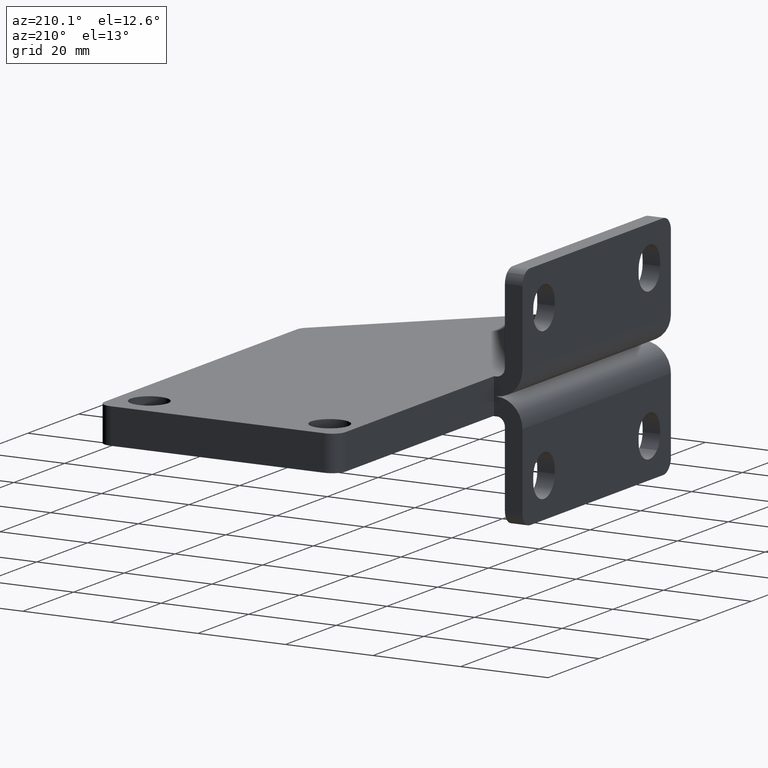
[diagram: clean part render]
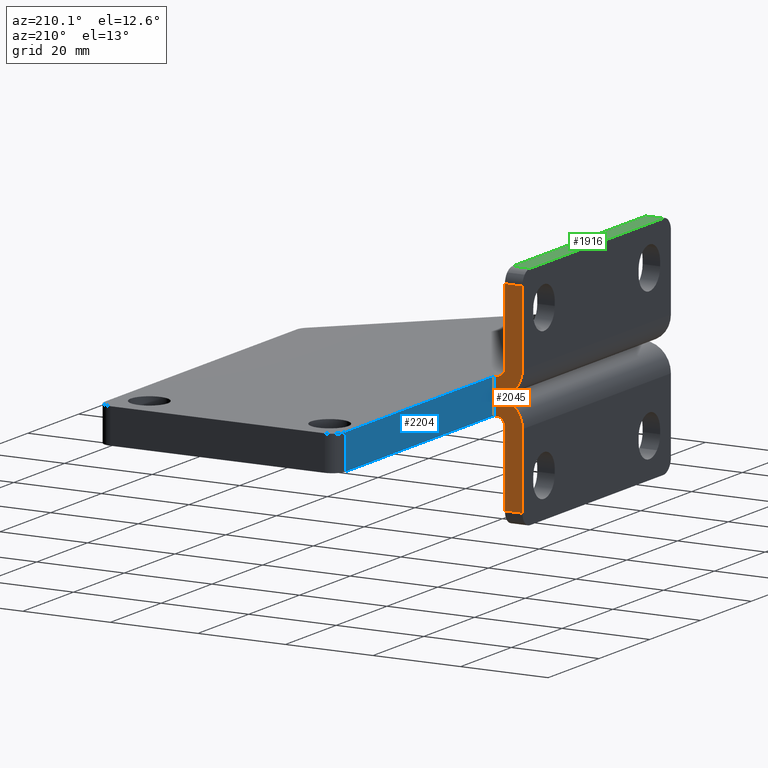
[diagram: same view with three faces highlighted in distinct colors, each labeled with its STEP entity id]
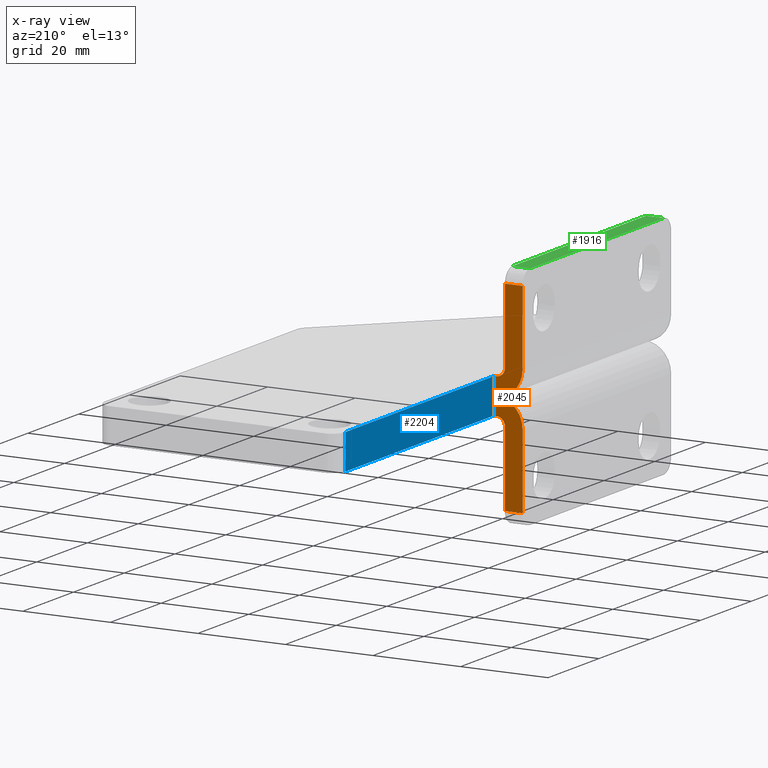
[diagram: x-ray of the same camera — body ghosted, the three highlighted faces saturated]
A machine part, auxiliary view with three faces highlighted in distinct colors.
The next image is the same camera in x-ray (body ghosted, the three faces saturated) — at least one of them is partly hidden behind the body in this view.
Their STEP definitions:

[orange] entity #2045 — the highlighted planar face has unit normal (0, 1, 0).
#59=CARTESIAN_POINT('',(-48.502768757920634,53.695288139689026,23.0));
#60=VERTEX_POINT('',#59);
#68=CARTESIAN_POINT('',(-52.502768757920641,53.695288139689026,23.0));
#69=VERTEX_POINT('',#68);
#70=CARTESIAN_POINT('',(-48.502768757920634,53.695288139689026,23.0));
#71=DIRECTION('',(-1.0,0.0,0.0));
#72=VECTOR('',#71,4.000000000000007);
#73=LINE('',#70,#72);
#74=EDGE_CURVE('',#60,#69,#73,.T.);
#1189=CARTESIAN_POINT('',(-48.502768757920627,53.695288139689019,-22.999999999999993));
#1190=VERTEX_POINT('',#1189);
#1198=CARTESIAN_POINT('',(-48.502768757920627,53.695288139689019,-5.999999999999995));
#1199=VERTEX_POINT('',#1198);
#1200=CARTESIAN_POINT('',(-48.502768757920627,53.695288139689019,-5.999999999999995));
#1201=DIRECTION('',(0.0,0.0,-1.0));
#1202=VECTOR('',#1201,17.0);
#1203=LINE('',#1200,#1202);
#1204=EDGE_CURVE('',#1199,#1190,#1203,.T.);
#1266=CARTESIAN_POINT('',(-52.502768757920620,53.695288139689019,-22.999999999999993));
#1267=VERTEX_POINT('',#1266);
#1275=CARTESIAN_POINT('',(-48.502768757920627,53.695288139689019,-22.999999999999993));
#1276=DIRECTION('',(-1.0,0.0,0.0));
#1277=VECTOR('',#1276,3.999999999999993);
#1278=LINE('',#1275,#1277);
#1279=EDGE_CURVE('',#1190,#1267,#1278,.T.);
#1312=CARTESIAN_POINT('',(-46.502768757920627,53.695288139689019,-3.999999999999996));
#1313=VERTEX_POINT('',#1312);
#1314=CARTESIAN_POINT('',(-46.502768757920634,53.695288139689019,-5.999999999999996));
#1315=DIRECTION('',(0.0,-1.0,0.0));
#1316=DIRECTION('',(0.0,0.0,1.0));
#1317=AXIS2_PLACEMENT_3D('',#1314,#1315,#1316);
#1318=CIRCLE('',#1317,2.000000000000001);
#1319=EDGE_CURVE('',#1313,#1199,#1318,.T.);
#1365=CARTESIAN_POINT('',(-52.502768757920634,53.695288139689019,-5.999999999999995));
#1366=VERTEX_POINT('',#1365);
#1384=CARTESIAN_POINT('',(-46.502768757920634,53.695288139689026,0.0));
#1385=VERTEX_POINT('',#1384);
#1392=CARTESIAN_POINT('',(-46.502768757920634,53.695288139689019,-5.999999999999996));
#1393=DIRECTION('',(0.0,-1.0,0.0));
#1394=DIRECTION('',(0.0,0.0,1.0));
#1395=AXIS2_PLACEMENT_3D('',#1392,#1393,#1394);
#1396=CIRCLE('',#1395,6.000000000000001);
#1397=EDGE_CURVE('',#1385,#1366,#1396,.T.);
#1408=CARTESIAN_POINT('',(-46.002768757920627,53.695288139689019,-3.999999999999996));
#1409=VERTEX_POINT('',#1408);
#1410=CARTESIAN_POINT('',(-46.002768757920627,53.695288139689019,-3.999999999999996));
#1411=DIRECTION('',(-1.0,0.0,0.0));
#1412=VECTOR('',#1411,0.500000000000000);
#1413=LINE('',#1410,#1412);
#1414=EDGE_CURVE('',#1409,#1313,#1413,.T.);
#1527=CARTESIAN_POINT('',(-52.502768757920634,53.695288139689019,-5.999999999999995));
#1528=DIRECTION('',(0.0,0.0,-1.0));
#1529=VECTOR('',#1528,17.0);
#1530=LINE('',#1527,#1529);
#1531=EDGE_CURVE('',#1366,#1267,#1530,.T.);
#1931=CARTESIAN_POINT('',(-48.502768757920634,53.695288139689026,6.0));
#1932=VERTEX_POINT('',#1931);
#1939=CARTESIAN_POINT('',(-48.502768757920634,53.695288139689026,6.0));
#1940=DIRECTION('',(0.0,0.0,1.0));
#1941=VECTOR('',#1940,17.0);
#1942=LINE('',#1939,#1941);
#1943=EDGE_CURVE('',#1932,#60,#1942,.T.);
#1992=CARTESIAN_POINT('',(-48.502768757920634,53.695288139689026,4.0));
#1993=DIRECTION('',(0.0,1.0,0.0));
#1994=DIRECTION('',(0.0,0.0,1.0));
#1995=AXIS2_PLACEMENT_3D('',#1992,#1993,#1994);
#1996=PLANE('',#1995);
#1997=ORIENTED_EDGE('',*,*,#74,.F.);
#1998=ORIENTED_EDGE('',*,*,#1943,.F.);
#1999=CARTESIAN_POINT('',(-46.502768757920634,53.695288139689026,4.0));
#2000=VERTEX_POINT('',#1999);
#2001=CARTESIAN_POINT('',(-46.502768757920649,53.695288139689026,6.000000000000001));
#2002=DIRECTION('',(0.0,1.0,0.0));
#2003=DIRECTION('',(0.0,0.0,-1.0));
#2004=AXIS2_PLACEMENT_3D('',#2001,#2002,#2003);
#2005=CIRCLE('',#2004,2.000000000000001);
#2006=EDGE_CURVE('',#2000,#1932,#2005,.T.);
#2007=ORIENTED_EDGE('',*,*,#2006,.F.);
#2008=CARTESIAN_POINT('',(-46.002768757920634,53.695288139689026,4.0));
#2009=VERTEX_POINT('',#2008);
#2010=CARTESIAN_POINT('',(-46.002768757920634,53.695288139689026,4.0));
#2011=DIRECTION('',(-1.0,0.0,0.0));
#2012=VECTOR('',#2011,0.500000000000000);
#2013=LINE('',#2010,#2012);
#2014=EDGE_CURVE('',#2009,#2000,#2013,.T.);
#2015=ORIENTED_EDGE('',*,*,#2014,.F.);
#2016=CARTESIAN_POINT('',(-46.002768757920627,53.695288139689019,-3.999999999999996));
#2017=DIRECTION('',(0.0,0.0,1.0));
#2018=VECTOR('',#2017,7.999999999999996);
#2019=LINE('',#2016,#2018);
#2020=EDGE_CURVE('',#1409,#2009,#2019,.T.);
#2021=ORIENTED_EDGE('',*,*,#2020,.F.);
#2022=ORIENTED_EDGE('',*,*,#1414,.T.);
#2023=ORIENTED_EDGE('',*,*,#1319,.T.);
#2024=ORIENTED_EDGE('',*,*,#1204,.T.);
#2025=ORIENTED_EDGE('',*,*,#1279,.T.);
#2026=ORIENTED_EDGE('',*,*,#1531,.F.);
#2027=ORIENTED_EDGE('',*,*,#1397,.F.);
#2028=CARTESIAN_POINT('',(-52.502768757920641,53.695288139689026,6.0));
#2029=VERTEX_POINT('',#2028);
#2030=CARTESIAN_POINT('',(-46.502768757920649,53.695288139689026,6.000000000000001));
#2031=DIRECTION('',(0.0,1.0,0.0));
#2032=DIRECTION('',(0.0,0.0,-1.0));
#2033=AXIS2_PLACEMENT_3D('',#2030,#2031,#2032);
#2034=CIRCLE('',#2033,6.000000000000001);
#2035=EDGE_CURVE('',#1385,#2029,#2034,.T.);
#2036=ORIENTED_EDGE('',*,*,#2035,.T.);
#2037=CARTESIAN_POINT('',(-52.502768757920641,53.695288139689026,6.0));
#2038=DIRECTION('',(0.0,0.0,1.0));
#2039=VECTOR('',#2038,17.0);
#2040=LINE('',#2037,#2039);
#2041=EDGE_CURVE('',#2029,#69,#2040,.T.);
#2042=ORIENTED_EDGE('',*,*,#2041,.T.);
#2043=EDGE_LOOP('',(#1997,#1998,#2007,#2015,#2021,#2022,#2023,#2024,#2025,#2026,#2027,#2036,#2042));
#2044=FACE_OUTER_BOUND('',#2043,.T.);
#2045=ADVANCED_FACE('',(#2044),#1996,.T.);

[blue] entity #2204 — the highlighted planar face has unit normal (-1, 0, 0).
#1408=CARTESIAN_POINT('',(-46.002768757920627,53.695288139689019,-3.999999999999996));
#1409=VERTEX_POINT('',#1408);
#1416=CARTESIAN_POINT('',(-46.002768757920634,112.195288139689000,-3.999999999999996));
#1417=VERTEX_POINT('',#1416);
#1418=CARTESIAN_POINT('',(-46.002768757920627,53.695288139689019,-3.999999999999996));
#1419=DIRECTION('',(0.0,1.0,0.0));
#1420=VECTOR('',#1419,58.499999999999979);
#1421=LINE('',#1418,#1420);
#1422=EDGE_CURVE('',#1409,#1417,#1421,.T.);
#2008=CARTESIAN_POINT('',(-46.002768757920634,53.695288139689026,4.0));
#2009=VERTEX_POINT('',#2008);
#2016=CARTESIAN_POINT('',(-46.002768757920627,53.695288139689019,-3.999999999999996));
#2017=DIRECTION('',(0.0,0.0,1.0));
#2018=VECTOR('',#2017,7.999999999999996);
#2019=LINE('',#2016,#2018);
#2020=EDGE_CURVE('',#1409,#2009,#2019,.T.);
#2161=CARTESIAN_POINT('',(-46.002768757920656,112.195288139689010,4.0));
#2162=VERTEX_POINT('',#2161);
#2170=CARTESIAN_POINT('',(-46.002768757920634,53.695288139689026,4.0));
#2171=DIRECTION('',(0.0,1.0,0.0));
#2172=VECTOR('',#2171,58.499999999999986);
#2173=LINE('',#2170,#2172);
#2174=EDGE_CURVE('',#2009,#2162,#2173,.T.);
#2188=CARTESIAN_POINT('',(-46.002768757920620,-4.804711860310976,0.0));
#2189=DIRECTION('',(-1.0,0.0,0.0));
#2190=DIRECTION('',(0.0,0.0,1.0));
#2191=AXIS2_PLACEMENT_3D('',#2188,#2189,#2190);
#2192=PLANE('',#2191);
#2193=ORIENTED_EDGE('',*,*,#2020,.T.);
#2194=ORIENTED_EDGE('',*,*,#2174,.T.);
#2195=CARTESIAN_POINT('',(-46.002768757920634,112.195288139689000,-3.999999999999996));
#2196=DIRECTION('',(0.0,0.0,1.0));
#2197=VECTOR('',#2196,7.999999999999996);
#2198=LINE('',#2195,#2197);
#2199=EDGE_CURVE('',#1417,#2162,#2198,.T.);
#2200=ORIENTED_EDGE('',*,*,#2199,.F.);
#2201=ORIENTED_EDGE('',*,*,#1422,.F.);
#2202=EDGE_LOOP('',(#2193,#2194,#2200,#2201));
#2203=FACE_OUTER_BOUND('',#2202,.T.);
#2204=ADVANCED_FACE('',(#2203),#2192,.T.);

[green] entity #1916 — the highlighted planar face has unit normal (0, 0, 1).
#101=CARTESIAN_POINT('',(-48.502768757920627,-1.804711860310977,26.0));
#102=VERTEX_POINT('',#101);
#110=CARTESIAN_POINT('',(-52.502768757920620,-1.804711860310977,26.0));
#111=VERTEX_POINT('',#110);
#112=CARTESIAN_POINT('',(-48.502768757920627,-1.804711860310977,26.0));
#113=DIRECTION('',(-1.0,0.0,0.0));
#114=VECTOR('',#113,3.999999999999993);
#115=LINE('',#112,#114);
#116=EDGE_CURVE('',#102,#111,#115,.T.);
#1886=CARTESIAN_POINT('',(-48.502768757920634,53.695288139689026,26.0));
#1887=DIRECTION('',(0.0,0.0,1.0));
#1888=DIRECTION('',(1.0,0.0,0.0));
#1889=AXIS2_PLACEMENT_3D('',#1886,#1887,#1888);
#1890=PLANE('',#1889);
#1891=ORIENTED_EDGE('',*,*,#116,.F.);
#1892=CARTESIAN_POINT('',(-48.502768757920634,50.695288139689026,26.0));
#1893=VERTEX_POINT('',#1892);
#1894=CARTESIAN_POINT('',(-48.502768757920634,50.695288139689026,26.0));
#1895=DIRECTION('',(0.0,-1.0,0.0));
#1896=VECTOR('',#1895,52.500000000000000);
#1897=LINE('',#1894,#1896);
#1898=EDGE_CURVE('',#1893,#102,#1897,.T.);
#1899=ORIENTED_EDGE('',*,*,#1898,.F.);
#1900=CARTESIAN_POINT('',(-52.502768757920641,50.695288139689026,26.0));
#1901=VERTEX_POINT('',#1900);
#1902=CARTESIAN_POINT('',(-52.502768757920641,50.695288139689026,26.0));
#1903=DIRECTION('',(1.0,0.0,0.0));
#1904=VECTOR('',#1903,4.000000000000007);
#1905=LINE('',#1902,#1904);
#1906=EDGE_CURVE('',#1901,#1893,#1905,.T.);
#1907=ORIENTED_EDGE('',*,*,#1906,.F.);
#1908=CARTESIAN_POINT('',(-52.502768757920641,50.695288139689026,26.0));
#1909=DIRECTION('',(0.0,-1.0,0.0));
#1910=VECTOR('',#1909,52.500000000000000);
#1911=LINE('',#1908,#1910);
#1912=EDGE_CURVE('',#1901,#111,#1911,.T.);
#1913=ORIENTED_EDGE('',*,*,#1912,.T.);
#1914=EDGE_LOOP('',(#1891,#1899,#1907,#1913));
#1915=FACE_OUTER_BOUND('',#1914,.T.);
#1916=ADVANCED_FACE('',(#1915),#1890,.T.);